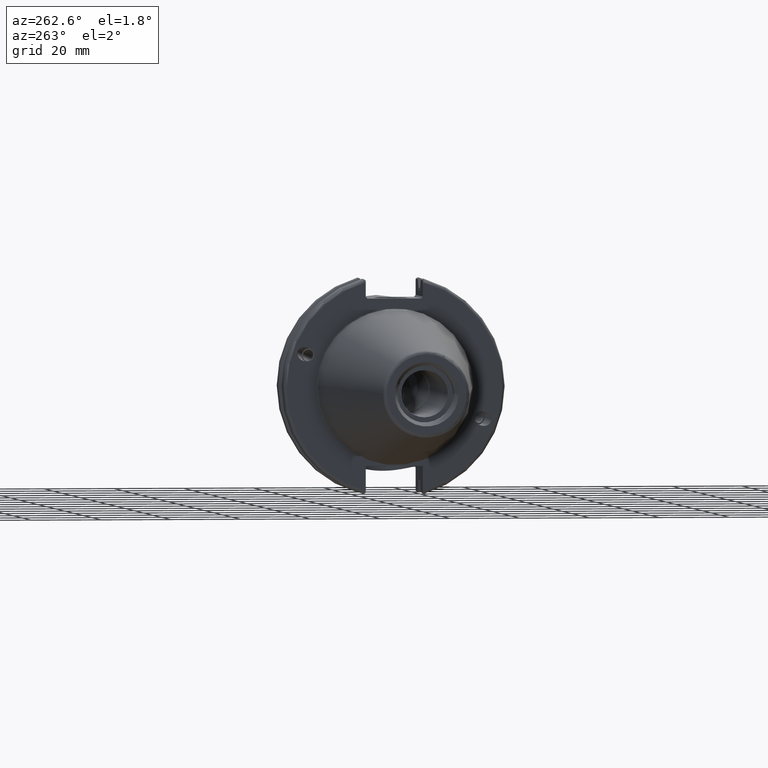
[diagram: clean part render]
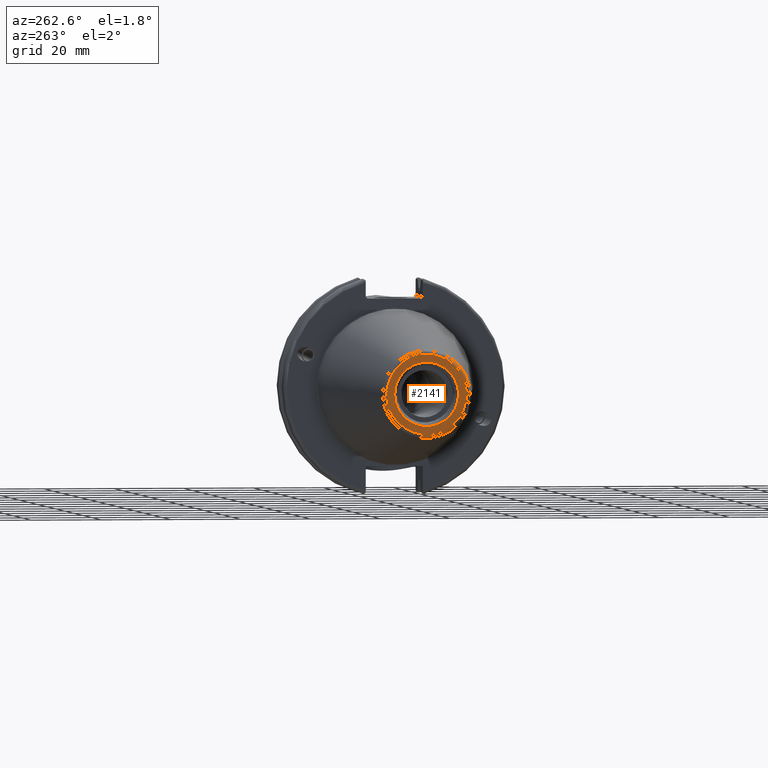
[diagram: same view with one face highlighted and labeled with its STEP entity id]
A machine part, auxiliary view. The second image highlights one B-rep face of the part: STEP entity #2141.
In plain terms, the highlighted planar face has unit normal (-1, 0, 0).
Its self-contained STEP definition (entity closure, byte-faithful):
#70=PLANE('',#2439);
#115=FACE_BOUND('',#379,.T.);
#260=FACE_OUTER_BOUND('',#378,.T.);
#378=EDGE_LOOP('',(#1898,#1899));
#379=EDGE_LOOP('',(#1900,#1901));
#758=CIRCLE('',#2436,11.4071305970304);
#759=CIRCLE('',#2437,11.4071305970304);
#761=CIRCLE('',#2440,9.15);
#762=CIRCLE('',#2441,9.15);
#1001=VERTEX_POINT('',#4122);
#1002=VERTEX_POINT('',#4124);
#1003=VERTEX_POINT('',#4129);
#1004=VERTEX_POINT('',#4130);
#1319=EDGE_CURVE('',#1001,#1002,#758,.T.);
#1320=EDGE_CURVE('',#1002,#1001,#759,.T.);
#1322=EDGE_CURVE('',#1003,#1004,#761,.T.);
#1323=EDGE_CURVE('',#1004,#1003,#762,.T.);
#1898=ORIENTED_EDGE('',*,*,#1320,.F.);
#1899=ORIENTED_EDGE('',*,*,#1319,.F.);
#1900=ORIENTED_EDGE('',*,*,#1322,.T.);
#1901=ORIENTED_EDGE('',*,*,#1323,.T.);
#2141=ADVANCED_FACE('',(#260,#115),#70,.T.);
#2436=AXIS2_PLACEMENT_3D('',#4125,#3063,#3064);
#2437=AXIS2_PLACEMENT_3D('',#4126,#3065,#3066);
#2439=AXIS2_PLACEMENT_3D('',#4128,#3069,#3070);
#2440=AXIS2_PLACEMENT_3D('',#4131,#3071,#3072);
#2441=AXIS2_PLACEMENT_3D('',#4132,#3073,#3074);
#3063=DIRECTION('center_axis',(1.,0.,0.));
#3064=DIRECTION('ref_axis',(0.,-1.,1.83697019872103E-16));
#3065=DIRECTION('center_axis',(1.,0.,0.));
#3066=DIRECTION('ref_axis',(0.,-1.,1.83697019872103E-16));
#3069=DIRECTION('center_axis',(-1.,0.,0.));
#3070=DIRECTION('ref_axis',(0.,0.,1.));
#3071=DIRECTION('center_axis',(1.,0.,0.));
#3072=DIRECTION('ref_axis',(0.,0.,-1.));
#3073=DIRECTION('center_axis',(1.,0.,0.));
#3074=DIRECTION('ref_axis',(0.,0.,-1.));
#4122=CARTESIAN_POINT('',(-68.25,-1.39697059731091E-15,11.4071305970304));
#4124=CARTESIAN_POINT('',(-68.25,11.4071305970304,-6.98485298655456E-16));
#4125=CARTESIAN_POINT('Origin',(-68.25,0.,0.));
#4126=CARTESIAN_POINT('Origin',(-68.25,0.,0.));
#4128=CARTESIAN_POINT('Origin',(-68.25,12.271875,0.));
#4129=CARTESIAN_POINT('',(-68.25,9.15,0.));
#4130=CARTESIAN_POINT('',(-68.25,-9.15,-1.12055182121983E-15));
#4131=CARTESIAN_POINT('Origin',(-68.25,0.,0.));
#4132=CARTESIAN_POINT('Origin',(-68.25,0.,0.));